MODEL slx_56e38f5b66ac
KIND model
CONFIG AbsTol = auto
CONFIG EnableMultiTasking = on
CONFIG FixedStep = auto
CONFIG MaxStep = auto
CONFIG MinStep = auto
CONFIG RelTol = 1e-3
CONFIG SampleTimeConstraint = Unconstrained
CONFIG SolverName = VariableStepAuto
CONFIG StartTime = 0.0
CONFIG StopTime = 10.0
BLOCK [Reference] Mechanism Configuration  REF=sm_lib/Utilities/Mechanism
Configuration
  Ports = [0, 0, 0, 0, 0, 0, 1]
  SourceBlock = sm_lib/Utilities/Mechanism\nConfiguration
  SourceProductBaseCode = MS
  SourceType = Mechanism\nConfiguration
BLOCK [Mux] Mux
  DisplayOption = bar
  Inputs = 2
  Ports = [2, 1]
BLOCK [Reference] PID Controller  REF=slpidlib/PID Controller
  NameLocation = top
  Ports = [1, 1]
  SourceBlock = slpidlib/PID Controller
  SourceProductBaseCode = SL
  SourceType = PID 1dof
BLOCK [Reference] PS-Simulink Converter  REF=nesl_utility/PS-Simulink
Converter
  Ports = [0, 1, 0, 0, 0, 1]
  SourceBlock = nesl_utility/PS-Simulink\nConverter
  SourceProductBaseCode = SS,PW,VE
  SourceType = PS-Simulink\nConverter
BLOCK [Reference] PS-Simulink Converter1  REF=nesl_utility/PS-Simulink
Converter
  NameLocation = top
  Ports = [0, 1, 0, 0, 0, 1]
  SourceBlock = nesl_utility/PS-Simulink\nConverter
  SourceProductBaseCode = SS,PW,VE
  SourceType = PS-Simulink\nConverter
BLOCK [Reference] Prismatic Joint  REF=sm_lib/Joints/Prismatic
Joint
  Ports = [0, 0, 0, 0, 0, 2, 2]
  SourceBlock = sm_lib/Joints/Prismatic\nJoint
  SourceProductBaseCode = MS
  SourceType = Prismatic\nJoint
BLOCK [Reference] Revolute Joint  REF=sm_lib/Joints/Revolute Joint
  Ports = [0, 0, 0, 0, 0, 1, 2]
  SourceBlock = sm_lib/Joints/Revolute Joint
  SourceProductBaseCode = MS
  SourceType = Revolute Joint
BLOCK [Reference] Rigid Transform1  REF=sm_lib/Frames and
Transforms/Rigid
Transform
  Ports = [0, 0, 0, 0, 0, 1, 1]
  SourceBlock = sm_lib/Frames and\nTransforms/Rigid\nTransform
  SourceProductBaseCode = MS
  SourceType = Rigid\nTransform
BLOCK [Reference] Rigid Transform2  REF=sm_lib/Frames and
Transforms/Rigid
Transform
  Ports = [0, 0, 0, 0, 0, 1, 1]
  SourceBlock = sm_lib/Frames and\nTransforms/Rigid\nTransform
  SourceProductBaseCode = MS
  SourceType = Rigid\nTransform
BLOCK [Scope] Scope 
  Floating = off
  NumInputPorts = 1
  Ports = [1]
  ScopeSpecificationString = Simulink.scopes.TimeScopeBlockCfg('CurrentConfiguration', extmgr.ConfigurationSet(extmgr.Configuration('Core','General UI',true),extmgr.Configuration('Core','Source UI',true),extmgr.Configuration('Sources','WiredSimulink',true,'DataLoggingVariableName','ScopeData1'),extmgr.Configuration('Visuals','Time Domain',true,'SerializedDisplays',{struct('MinYLimReal','-23.52314','MaxYLimReal','28.37454','YL...<+1471ch>
BLOCK [Reference] Simulink-PS Converter1  REF=nesl_utility/Simulink-PS
Converter
  NameLocation = top
  Ports = [1, 0, 0, 0, 0, 0, 1]
  SourceBlock = nesl_utility/Simulink-PS\nConverter
  SourceProductBaseCode = SS,PW,VE
  SourceType = Simulink-PS\nConverter
BLOCK [Reference] Solver Configuration  REF=nesl_utility/Solver
Configuration
  Ports = [0, 0, 0, 0, 0, 0, 1]
  SourceBlock = nesl_utility/Solver\nConfiguration
  SourceProductBaseCode = SS,PW,VE
  SourceType = Solver\nConfiguration
BLOCK [Sum] Sum
  Inputs = |+-|
  NameLocation = top
  Ports = [2, 1]
BLOCK [Reference] World Frame  REF=sm_lib/Frames and
Transforms/World Frame
  Ports = [0, 0, 0, 0, 0, 0, 1]
  SourceBlock = sm_lib/Frames and\nTransforms/World Frame
  SourceProductBaseCode = MS
  SourceType = World Frame
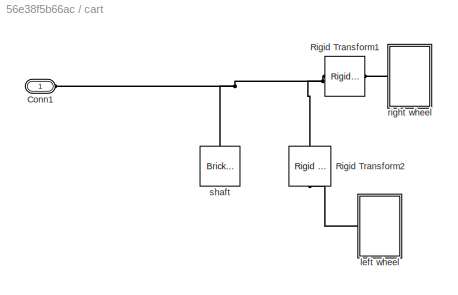
BLOCK [SubSystem] cart
  Ports = [0, 0, 0, 0, 0, 1]
  RequestExecContextInheritance = off
BLOCK [PMIOPort] cart/Conn1
  Side = Left
BLOCK [Reference] cart/Rigid Transform1  REF=sm_lib/Frames and
Transforms/Rigid
Transform
  Ports = [0, 0, 0, 0, 0, 1, 1]
  SourceBlock = sm_lib/Frames and\nTransforms/Rigid\nTransform
  SourceProductBaseCode = MS
  SourceType = Rigid\nTransform
BLOCK [Reference] cart/Rigid Transform2  REF=sm_lib/Frames and
Transforms/Rigid
Transform
  NameLocation = left
  Ports = [0, 0, 0, 0, 0, 1, 1]
  SourceBlock = sm_lib/Frames and\nTransforms/Rigid\nTransform
  SourceProductBaseCode = MS
  SourceType = Rigid\nTransform
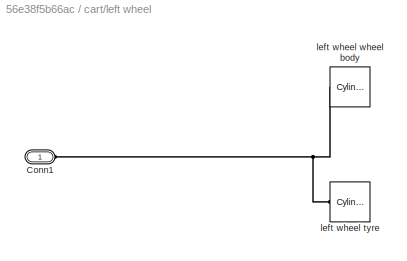
BLOCK [SubSystem] cart/left wheel 
  Ports = [0, 0, 0, 0, 0, 1]
  RequestExecContextInheritance = off
BLOCK [PMIOPort] cart/left wheel /Conn1
  Side = Left
BLOCK [Reference] cart/left wheel /left wheel tyre   REF=sm_lib/Body Elements/Cylindrical Solid
  NameLocation = top
  Ports = [0, 0, 0, 0, 0, 0, 1]
  SourceBlock = sm_lib/Body Elements/Cylindrical Solid
  SourceProductBaseCode = MS
  SourceType = Cylindrical Solid
BLOCK [Reference] cart/left wheel /left wheel wheel body  REF=sm_lib/Body Elements/Cylindrical Solid
  NameLocation = top
  Ports = [0, 0, 0, 0, 0, 0, 1]
  SourceBlock = sm_lib/Body Elements/Cylindrical Solid
  SourceProductBaseCode = MS
  SourceType = Cylindrical Solid
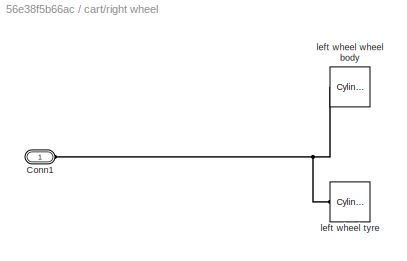
BLOCK [SubSystem] cart/right wheel 
  Ports = [0, 0, 0, 0, 0, 1]
  RequestExecContextInheritance = off
BLOCK [PMIOPort] cart/right wheel /Conn1
  Side = Left
BLOCK [Reference] cart/right wheel /left wheel tyre   REF=sm_lib/Body Elements/Cylindrical Solid
  NameLocation = top
  Ports = [0, 0, 0, 0, 0, 0, 1]
  SourceBlock = sm_lib/Body Elements/Cylindrical Solid
  SourceProductBaseCode = MS
  SourceType = Cylindrical Solid
BLOCK [Reference] cart/right wheel /left wheel wheel body  REF=sm_lib/Body Elements/Cylindrical Solid
  NameLocation = top
  Ports = [0, 0, 0, 0, 0, 0, 1]
  SourceBlock = sm_lib/Body Elements/Cylindrical Solid
  SourceProductBaseCode = MS
  SourceType = Cylindrical Solid
BLOCK [Reference] cart/shaft   REF=sm_lib/Body Elements/Brick Solid
  NameLocation = right
  Ports = [0, 0, 0, 0, 0, 0, 1]
  SourceBlock = sm_lib/Body Elements/Brick Solid
  SourceProductBaseCode = MS
  SourceType = Brick Solid
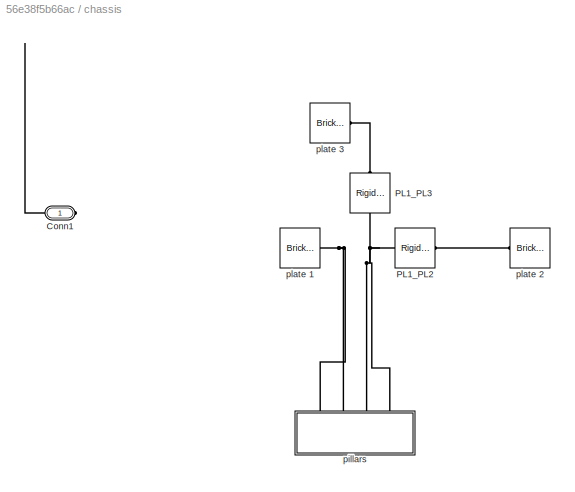
BLOCK [SubSystem] chassis
  Ports = [0, 0, 0, 0, 0, 1]
  RequestExecContextInheritance = off
BLOCK [PMIOPort] chassis/Conn1
  Side = Left
BLOCK [Reference] chassis/PL1_PL2   REF=sm_lib/Frames and
Transforms/Rigid
Transform
  Ports = [0, 0, 0, 0, 0, 1, 1]
  SourceBlock = sm_lib/Frames and\nTransforms/Rigid\nTransform
  SourceProductBaseCode = MS
  SourceType = Rigid\nTransform
BLOCK [Reference] chassis/PL1_PL3   REF=sm_lib/Frames and
Transforms/Rigid
Transform
  NameLocation = right
  Ports = [0, 0, 0, 0, 0, 1, 1]
  SourceBlock = sm_lib/Frames and\nTransforms/Rigid\nTransform
  SourceProductBaseCode = MS
  SourceType = Rigid\nTransform
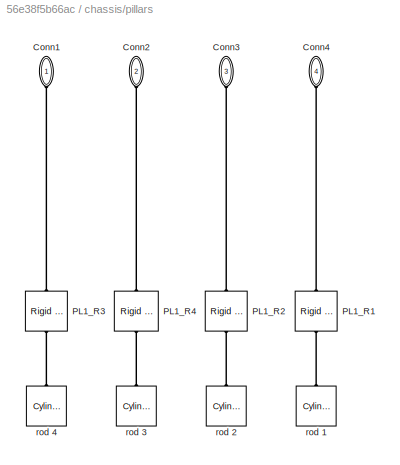
BLOCK [SubSystem] chassis/pillars 
  NameLocation = left
  Ports = [0, 0, 0, 0, 0, 4]
  RequestExecContextInheritance = off
BLOCK [PMIOPort] chassis/pillars /Conn1
  NameLocation = right
  Side = Left
BLOCK [PMIOPort] chassis/pillars /Conn2
  NameLocation = left
  Port = 2
  Side = Left
BLOCK [PMIOPort] chassis/pillars /Conn3
  NameLocation = left
  Port = 3
  Side = Left
BLOCK [PMIOPort] chassis/pillars /Conn4
  NameLocation = left
  Port = 4
  Side = Left
BLOCK [Reference] chassis/pillars /PL1_R1  REF=sm_lib/Frames and
Transforms/Rigid
Transform
  NameLocation = left
  Ports = [0, 0, 0, 0, 0, 1, 1]
  SourceBlock = sm_lib/Frames and\nTransforms/Rigid\nTransform
  SourceProductBaseCode = MS
  SourceType = Rigid\nTransform
BLOCK [Reference] chassis/pillars /PL1_R2  REF=sm_lib/Frames and
Transforms/Rigid
Transform
  NameLocation = left
  Ports = [0, 0, 0, 0, 0, 1, 1]
  SourceBlock = sm_lib/Frames and\nTransforms/Rigid\nTransform
  SourceProductBaseCode = MS
  SourceType = Rigid\nTransform
BLOCK [Reference] chassis/pillars /PL1_R3  REF=sm_lib/Frames and
Transforms/Rigid
Transform
  NameLocation = left
  Ports = [0, 0, 0, 0, 0, 1, 1]
  SourceBlock = sm_lib/Frames and\nTransforms/Rigid\nTransform
  SourceProductBaseCode = MS
  SourceType = Rigid\nTransform
BLOCK [Reference] chassis/pillars /PL1_R4  REF=sm_lib/Frames and
Transforms/Rigid
Transform
  NameLocation = left
  Ports = [0, 0, 0, 0, 0, 1, 1]
  SourceBlock = sm_lib/Frames and\nTransforms/Rigid\nTransform
  SourceProductBaseCode = MS
  SourceType = Rigid\nTransform
BLOCK [Reference] chassis/pillars /rod 1  REF=sm_lib/Body Elements/Cylindrical Solid
  NameLocation = right
  Ports = [0, 0, 0, 0, 0, 0, 1]
  SourceBlock = sm_lib/Body Elements/Cylindrical Solid
  SourceProductBaseCode = MS
  SourceType = Cylindrical Solid
BLOCK [Reference] chassis/pillars /rod 2  REF=sm_lib/Body Elements/Cylindrical Solid
  NameLocation = right
  Ports = [0, 0, 0, 0, 0, 0, 1]
  SourceBlock = sm_lib/Body Elements/Cylindrical Solid
  SourceProductBaseCode = MS
  SourceType = Cylindrical Solid
BLOCK [Reference] chassis/pillars /rod 3  REF=sm_lib/Body Elements/Cylindrical Solid
  NameLocation = right
  Ports = [0, 0, 0, 0, 0, 0, 1]
  SourceBlock = sm_lib/Body Elements/Cylindrical Solid
  SourceProductBaseCode = MS
  SourceType = Cylindrical Solid
BLOCK [Reference] chassis/pillars /rod 4  REF=sm_lib/Body Elements/Cylindrical Solid
  NameLocation = right
  Ports = [0, 0, 0, 0, 0, 0, 1]
  SourceBlock = sm_lib/Body Elements/Cylindrical Solid
  SourceProductBaseCode = MS
  SourceType = Cylindrical Solid
BLOCK [Reference] chassis/plate 1  REF=sm_lib/Body Elements/Brick Solid
  Ports = [0, 0, 0, 0, 0, 0, 1]
  SourceBlock = sm_lib/Body Elements/Brick Solid
  SourceProductBaseCode = MS
  SourceType = Brick Solid
BLOCK [Reference] chassis/plate 2  REF=sm_lib/Body Elements/Brick Solid
  NameLocation = top
  Ports = [0, 0, 0, 0, 0, 0, 1]
  SourceBlock = sm_lib/Body Elements/Brick Solid
  SourceProductBaseCode = MS
  SourceType = Brick Solid
BLOCK [Reference] chassis/plate 3  REF=sm_lib/Body Elements/Brick Solid
  Ports = [0, 0, 0, 0, 0, 0, 1]
  SourceBlock = sm_lib/Body Elements/Brick Solid
  SourceProductBaseCode = MS
  SourceType = Brick Solid
BLOCK [Step] initial perturbation
  After = 0
  Before = 10
  NameLocation = top
  SampleTime = 0
  Time = 0.1
BLOCK [Gain] rad 2 deg
  Gain = -180/3.14
  NameLocation = top
ANNOTATION (root): email : <email> linkedin : linkedin.com/in/mouaboumediene
ANNOTATION (root): contact info
ANNOTATION (root): two wheeled self balancing robot by : mouad boumediene
LINE Mux:1 -> Scope :1
LINE PID Controller:1 -> Simulink-PS Converter1:1
LINE PS-Simulink Converter1:1 -> rad 2 deg:1
LINE PS-Simulink Converter:1 -> Mux:2
LINE Sum:1 -> PID Controller:1
LINE initial perturbation:1 -> Sum:2
NET rad 2 deg:1 -> Mux:1, Sum:1
PNET net1: Mechanism Configuration:RConn1 -- Prismatic Joint:LConn1 -- Solver Configuration:RConn1 -- World Frame:RConn1
PLINE PS-Simulink Converter1:LConn1 -- Revolute Joint:RConn2
PLINE PS-Simulink Converter:LConn1 -- Prismatic Joint:RConn2
PLINE Prismatic Joint:LConn2 -- Simulink-PS Converter1:RConn1
PLINE Prismatic Joint:RConn1 -- Rigid Transform2:LConn1
PNET net2: Revolute Joint:LConn1 -- Rigid Transform2:RConn1 -- cart:LConn1
PLINE Revolute Joint:RConn1 -- Rigid Transform1:LConn1
PLINE Rigid Transform1:RConn1 -- chassis:LConn1
PNET net3: cart/Conn1:RConn1 -- cart/Rigid Transform1:LConn1 -- cart/Rigid Transform2:LConn1 -- cart/shaft :RConn1
PLINE cart/Rigid Transform1:RConn1 -- cart/right wheel :LConn1
PLINE cart/Rigid Transform2:RConn1 -- cart/left wheel :LConn1
PNET net4: cart/left wheel /Conn1:RConn1 -- cart/left wheel /left wheel tyre :RConn1 -- cart/left wheel /left wheel wheel body:RConn1
PNET net5: cart/right wheel /Conn1:RConn1 -- cart/right wheel /left wheel tyre :RConn1 -- cart/right wheel /left wheel wheel body:RConn1
PNET net6: chassis/Conn1:RConn1 -- chassis/PL1_PL2 :LConn1 -- chassis/PL1_PL3 :LConn1 -- chassis/pillars :LConn1 -- chassis/pillars :LConn2 -- chassis/pillars :LConn3 -- chassis/pillars :LConn4 -- chassis/plate 1:RConn1
PLINE chassis/PL1_PL2 :RConn1 -- chassis/plate 2:RConn1
PLINE chassis/PL1_PL3 :RConn1 -- chassis/plate 3:RConn1
PLINE chassis/pillars /Conn1:RConn1 -- chassis/pillars /PL1_R3:LConn1
PLINE chassis/pillars /Conn2:RConn1 -- chassis/pillars /PL1_R4:LConn1
PLINE chassis/pillars /Conn3:RConn1 -- chassis/pillars /PL1_R2:LConn1
PLINE chassis/pillars /Conn4:RConn1 -- chassis/pillars /PL1_R1:LConn1
PLINE chassis/pillars /PL1_R1:RConn1 -- chassis/pillars /rod 1:RConn1
PLINE chassis/pillars /PL1_R2:RConn1 -- chassis/pillars /rod 2:RConn1
PLINE chassis/pillars /PL1_R3:RConn1 -- chassis/pillars /rod 4:RConn1
PLINE chassis/pillars /PL1_R4:RConn1 -- chassis/pillars /rod 3:RConn1
note: NET lines group one-source signal fan-out (src -> all destinations, sorted); 1:1 wires keep LINE; PNET lines group multi-terminal physical nets as a canonical sorted terminal list (undirected conserving connections); 2-terminal nets keep the pairwise PLINE form
